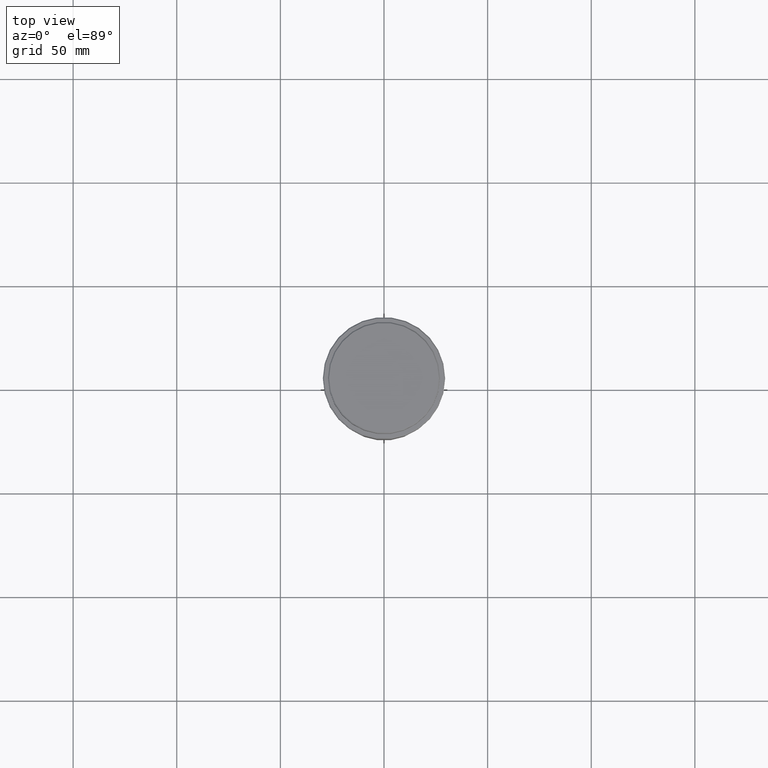
[diagram: clean part render]
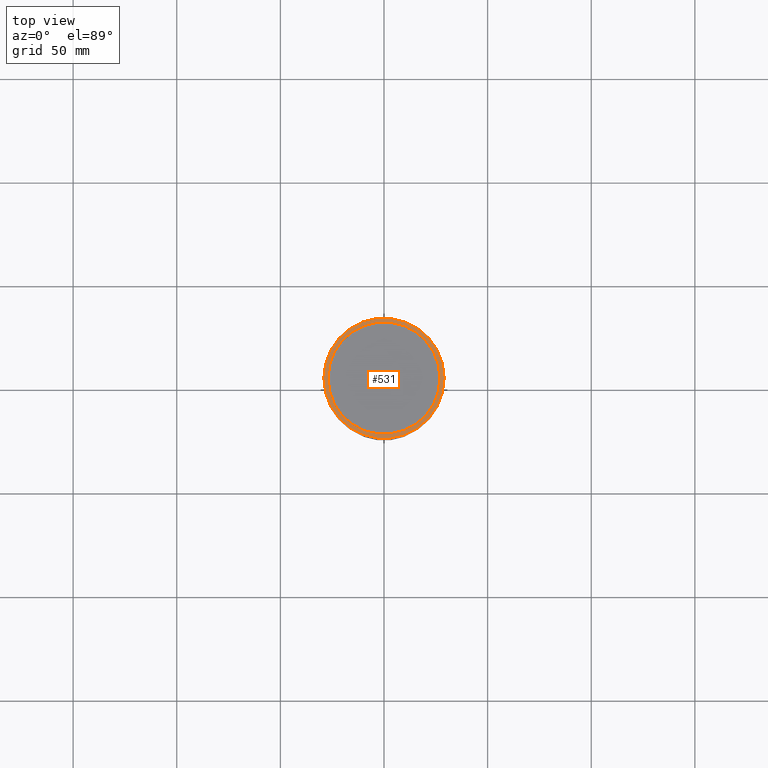
[diagram: same view with one face highlighted and labeled with its STEP entity id]
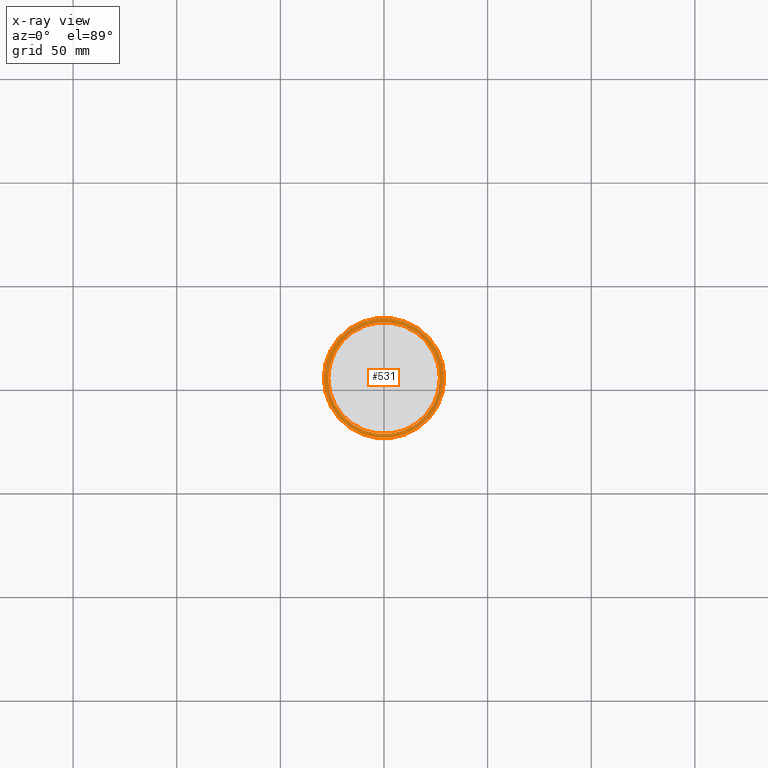
[diagram: x-ray of the same camera — body ghosted, the highlighted face saturated]
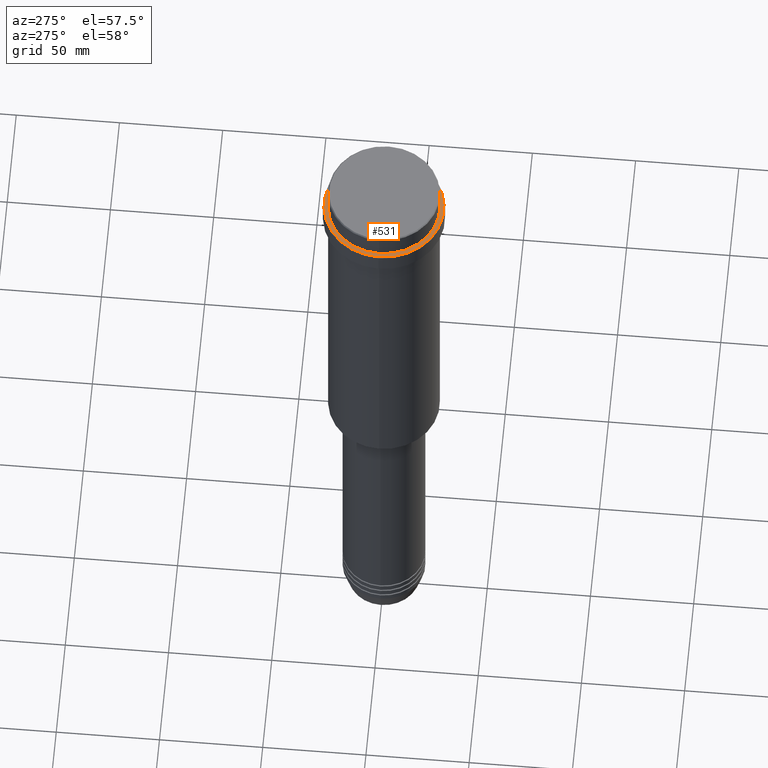
[diagram: same view with one face highlighted and labeled with its STEP entity id]
A machine part, top view. The second image highlights one B-rep face of the part: STEP entity #531.
The next image is the same camera in x-ray: the body ghosted, the highlighted face saturated — about 0% of this face is hidden behind the body in this view.
A second angle (auxiliary view) of the same face is appended — the face is thin or edge-on in the first view.
In plain terms, the highlighted planar face has unit normal (0, -0, 1).
Its self-contained STEP definition (entity closure, byte-faithful):
#13 = CARTESIAN_POINT ( 'NONE',  ( 29.00000000000002487, 3.582091887506009394E-15, -12.00000000000000355 ) ) ;
#22 = PLANE ( 'NONE',  #158 ) ;
#82 = VERTEX_POINT ( 'NONE', #249 ) ;
#126 = CARTESIAN_POINT ( 'NONE',  ( 0.000000000000000000, 26.49999999999999645, -12.00000000000000355 ) ) ;
#139 = VERTEX_POINT ( 'NONE', #362 ) ;
#158 = AXIS2_PLACEMENT_3D ( 'NONE', #126, #348, #359 ) ;
#249 = CARTESIAN_POINT ( 'NONE',  ( -29.00000000000002487, 0.000000000000000000, -12.00000000000000355 ) ) ;
#282 = ORIENTED_EDGE ( 'NONE', *, *, #908, .T. ) ;
#311 = ORIENTED_EDGE ( 'NONE', *, *, #414, .T. ) ;
#331 = DIRECTION ( 'NONE',  ( 1.000000000000000000, 0.000000000000000000, 0.000000000000000000 ) ) ;
#334 = VERTEX_POINT ( 'NONE', #936 ) ;
#347 = DIRECTION ( 'NONE',  ( 1.000000000000000000, 0.000000000000000000, 0.000000000000000000 ) ) ;
#348 = DIRECTION ( 'NONE',  ( 0.000000000000000000, -0.000000000000000000, 1.000000000000000000 ) ) ;
#359 = DIRECTION ( 'NONE',  ( 1.000000000000000000, 0.000000000000000000, 0.000000000000000000 ) ) ;
#362 = CARTESIAN_POINT ( 'NONE',  ( 26.99999999999999645, 0.000000000000000000, -12.00000000000000355 ) ) ;
#382 = AXIS2_PLACEMENT_3D ( 'NONE', #418, #846, #969 ) ;
#394 = CIRCLE ( 'NONE', #1257, 29.00000000000002487 ) ;
#414 = EDGE_CURVE ( 'NONE', #82, #525, #495, .T. ) ;
#418 = CARTESIAN_POINT ( 'NONE',  ( 0.000000000000000000, 0.000000000000000000, -12.00000000000000355 ) ) ;
#495 = CIRCLE ( 'NONE', #654, 29.00000000000002487 ) ;
#524 = CARTESIAN_POINT ( 'NONE',  ( 0.000000000000000000, 0.000000000000000000, -12.00000000000000355 ) ) ;
#525 = VERTEX_POINT ( 'NONE', #13 ) ;
#531 = ADVANCED_FACE ( 'NONE', ( #679, #1022 ), #22, .T. ) ;
#540 = CARTESIAN_POINT ( 'NONE',  ( 0.000000000000000000, 0.000000000000000000, -12.00000000000000355 ) ) ;
#595 = EDGE_LOOP ( 'NONE', ( #311, #643 ) ) ;
#614 = ORIENTED_EDGE ( 'NONE', *, *, #821, .T. ) ;
#643 = ORIENTED_EDGE ( 'NONE', *, *, #1387, .T. ) ;
#654 = AXIS2_PLACEMENT_3D ( 'NONE', #524, #742, #756 ) ;
#664 = DIRECTION ( 'NONE',  ( -0.000000000000000000, -0.000000000000000000, 1.000000000000000000 ) ) ;
#679 = FACE_OUTER_BOUND ( 'NONE', #595, .T. ) ;
#742 = DIRECTION ( 'NONE',  ( -0.000000000000000000, -0.000000000000000000, 1.000000000000000000 ) ) ;
#756 = DIRECTION ( 'NONE',  ( 1.000000000000000000, 0.000000000000000000, 0.000000000000000000 ) ) ;
#821 = EDGE_CURVE ( 'NONE', #139, #334, #1366, .T. ) ;
#834 = CIRCLE ( 'NONE', #382, 26.99999999999999645 ) ;
#839 = AXIS2_PLACEMENT_3D ( 'NONE', #540, #1059, #331 ) ;
#846 = DIRECTION ( 'NONE',  ( 0.000000000000000000, 0.000000000000000000, -1.000000000000000000 ) ) ;
#908 = EDGE_CURVE ( 'NONE', #334, #139, #834, .T. ) ;
#936 = CARTESIAN_POINT ( 'NONE',  ( -26.99999999999999645, 3.306546357697853339E-15, -12.00000000000000355 ) ) ;
#969 = DIRECTION ( 'NONE',  ( 1.000000000000000000, 0.000000000000000000, 0.000000000000000000 ) ) ;
#1022 = FACE_BOUND ( 'NONE', #1298, .T. ) ;
#1059 = DIRECTION ( 'NONE',  ( 0.000000000000000000, 0.000000000000000000, -1.000000000000000000 ) ) ;
#1257 = AXIS2_PLACEMENT_3D ( 'NONE', #1323, #664, #347 ) ;
#1298 = EDGE_LOOP ( 'NONE', ( #614, #282 ) ) ;
#1323 = CARTESIAN_POINT ( 'NONE',  ( 0.000000000000000000, 0.000000000000000000, -12.00000000000000355 ) ) ;
#1366 = CIRCLE ( 'NONE', #839, 26.99999999999999645 ) ;
#1387 = EDGE_CURVE ( 'NONE', #525, #82, #394, .T. ) ;